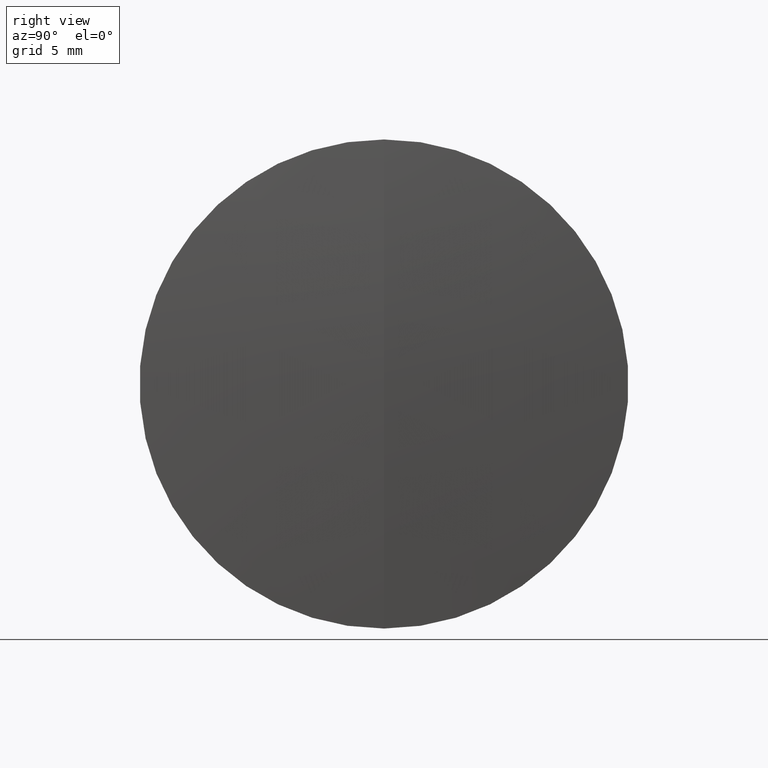
[diagram: clean part render]
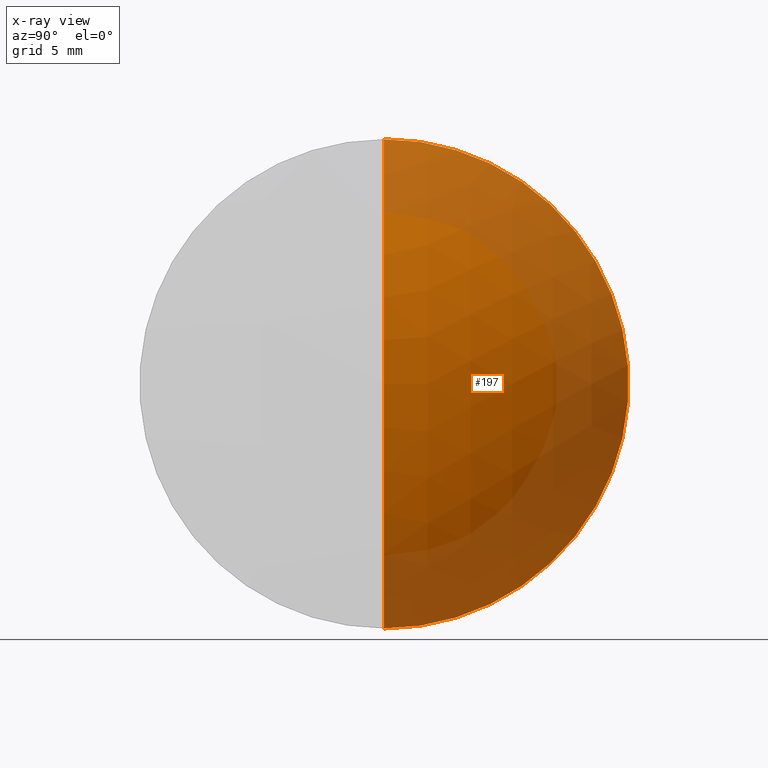
[diagram: x-ray — body ghosted, one internal face saturated and labeled with its STEP entity id]
A machine part, right view, then the same camera in x-ray: the body is ghosted and one INTERNAL B-rep face — a face not visible from any outside direction — is saturated and labeled: STEP entity #197.
In plain terms, the highlighted spherical surface has radius 21.28 mm.
Its self-contained STEP definition (entity closure, byte-faithful):
#1 = CARTESIAN_POINT ( 'NONE',  ( 285.7589865545651300, 0.0000000000000000000, 8.241918098200011900E-015 ) ) ;
#25 = DIRECTION ( 'NONE',  ( 0.0000000000000000000, 0.0000000000000000000, -1.000000000000000000 ) ) ;
#32 = DIRECTION ( 'NONE',  ( -1.000000000000000000, -0.0000000000000000000, -0.0000000000000000000 ) ) ;
#52 = DIRECTION ( 'NONE',  ( 0.0000000000000000000, 0.0000000000000000000, 1.000000000000000000 ) ) ;
#70 = DIRECTION ( 'NONE',  ( 0.0000000000000000000, -1.224646799147353000E-016, 1.000000000000000000 ) ) ;
#74 = CIRCLE ( 'NONE', #92, 12.70000000000000800 ) ;
#75 = SPHERICAL_SURFACE ( 'NONE', #251, 21.27999999999999400 ) ;
#83 = DIRECTION ( 'NONE',  ( 0.0000000000000000000, 0.0000000000000000000, 1.000000000000000000 ) ) ;
#92 = AXIS2_PLACEMENT_3D ( 'NONE', #181, #32, #83 ) ;
#96 = CARTESIAN_POINT ( 'NONE',  ( 264.4789865545651500, 0.0000000000000000000, 6.938893903907228400E-015 ) ) ;
#121 = AXIS2_PLACEMENT_3D ( 'NONE', #96, #157, #25 ) ;
#123 = VERTEX_POINT ( 'NONE', #241 ) ;
#125 = VERTEX_POINT ( 'NONE', #1 ) ;
#129 = AXIS2_PLACEMENT_3D ( 'NONE', #220, #335, #70 ) ;
#137 = EDGE_CURVE ( 'NONE', #125, #123, #285, .T. ) ;
#141 = ORIENTED_EDGE ( 'NONE', *, *, #238, .F. ) ;
#157 = DIRECTION ( 'NONE',  ( 0.0000000000000000000, -1.000000000000000000, 0.0000000000000000000 ) ) ;
#181 = CARTESIAN_POINT ( 'NONE',  ( 281.5537749866366000, 0.0000000000000000000, 0.0000000000000000000 ) ) ;
#197 = ADVANCED_FACE ( 'NONE', ( #199 ), #75, .T. ) ;
#199 = FACE_OUTER_BOUND ( 'NONE', #343, .T. ) ;
#213 = ORIENTED_EDGE ( 'NONE', *, *, #137, .F. ) ;
#216 = CIRCLE ( 'NONE', #129, 21.27999999999999400 ) ;
#220 = CARTESIAN_POINT ( 'NONE',  ( 264.4789865545651500, 0.0000000000000000000, 6.938893903907228400E-015 ) ) ;
#234 = DIRECTION ( 'NONE',  ( 0.0000000000000000000, 1.000000000000000000, 0.0000000000000000000 ) ) ;
#238 = EDGE_CURVE ( 'NONE', #123, #240, #74, .T. ) ;
#240 = VERTEX_POINT ( 'NONE', #326 ) ;
#241 = CARTESIAN_POINT ( 'NONE',  ( 281.5537749866366000, 0.0000000000000000000, 12.70000000000000800 ) ) ;
#249 = EDGE_CURVE ( 'NONE', #125, #240, #216, .T. ) ;
#250 = ORIENTED_EDGE ( 'NONE', *, *, #249, .T. ) ;
#251 = AXIS2_PLACEMENT_3D ( 'NONE', #263, #234, #52 ) ;
#263 = CARTESIAN_POINT ( 'NONE',  ( 264.4789865545651500, 0.0000000000000000000, 6.938893903907228400E-015 ) ) ;
#285 = CIRCLE ( 'NONE', #121, 21.27999999999999400 ) ;
#326 = CARTESIAN_POINT ( 'NONE',  ( 281.5537749866366000, 1.555301434917139400E-015, -12.70000000000000800 ) ) ;
#335 = DIRECTION ( 'NONE',  ( -0.0000000000000000000, 1.000000000000000000, 1.224646799147353200E-016 ) ) ;
#343 = EDGE_LOOP ( 'NONE', ( #213, #250, #141 ) ) ;